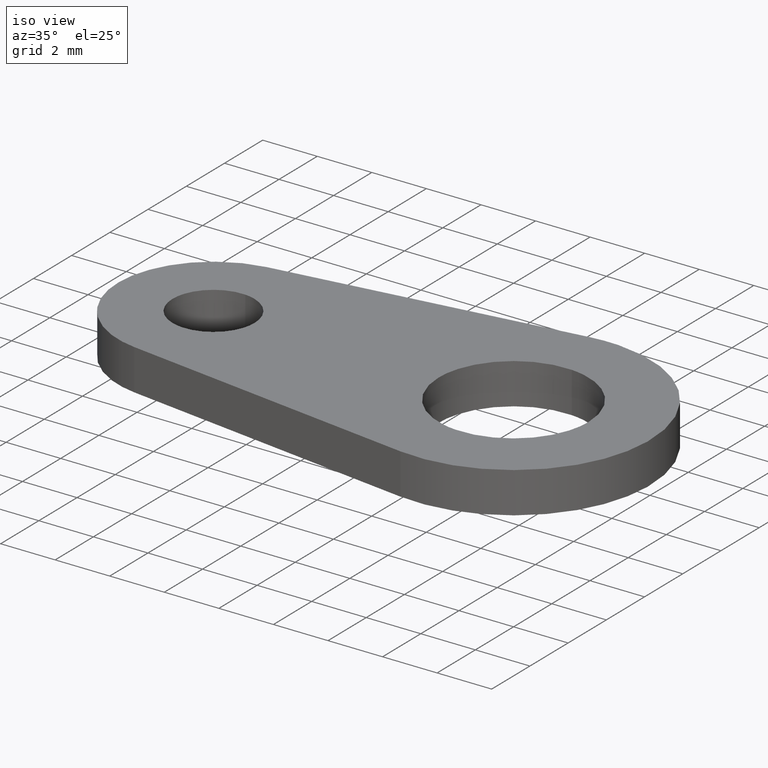
[diagram: clean part render]
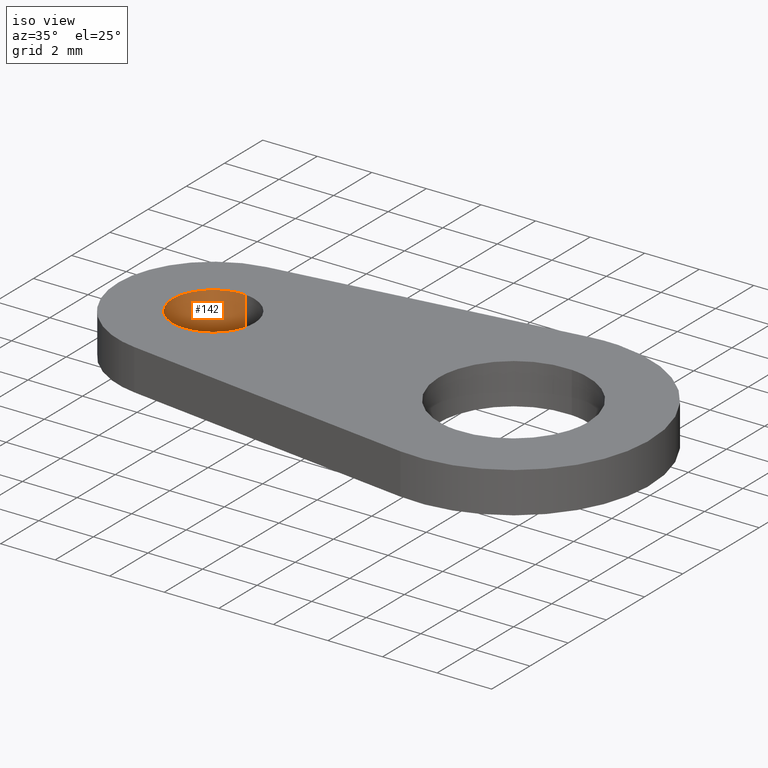
[diagram: same view with one face highlighted and labeled with its STEP entity id]
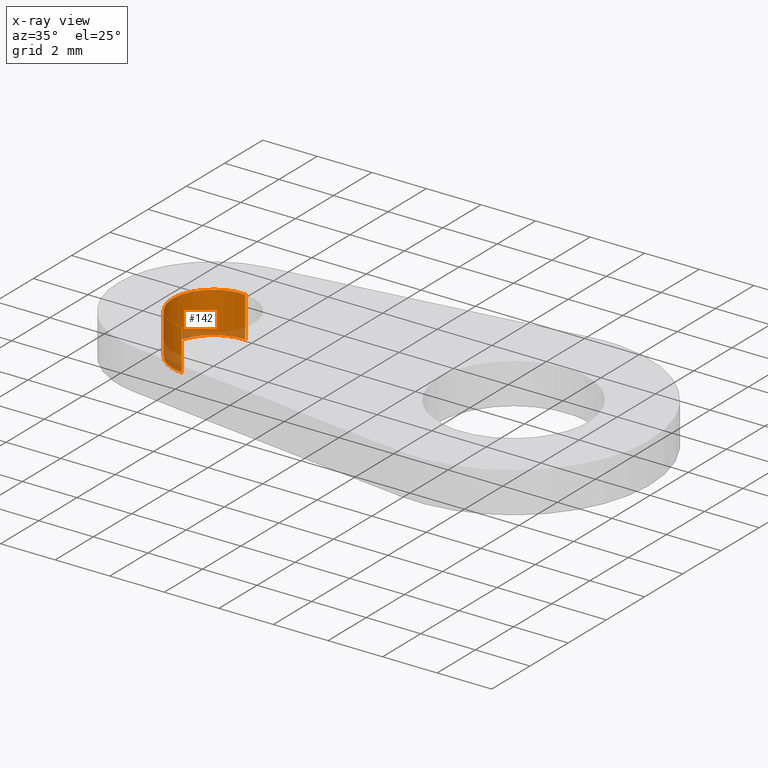
[diagram: x-ray of the same camera — body ghosted, the highlighted face saturated]
A machine part, iso view. The second image highlights one B-rep face of the part: STEP entity #142.
The next image is the same camera in x-ray: the body ghosted, the highlighted face saturated — about 17% of this face is hidden behind the body in this view.
In plain terms, the highlighted face is a freeform B-spline surface patch.
Its self-contained STEP definition (entity closure, byte-faithful):
#44=CARTESIAN_POINT('',(-0.117688643591768,-1.495376000599691,1.537500000000057));
#45=CARTESIAN_POINT('',(-1.613064644191460,-1.377687357007923,1.537500000000057));
#46=CARTESIAN_POINT('',(-1.495376000599691,0.117688643591768,1.537500000000057));
#47=CARTESIAN_POINT('',(-1.377687357007923,1.613064644191460,1.537500000000057));
#48=CARTESIAN_POINT('',(0.117688643591768,1.495376000599691,1.537500000000057));
#49=CARTESIAN_POINT('',(-0.117688643591768,-1.495376000599691,-0.038437500000001));
#50=CARTESIAN_POINT('',(-1.613064644191460,-1.377687357007923,-0.038437500000001));
#51=CARTESIAN_POINT('',(-1.495376000599691,0.117688643591768,-0.038437500000001));
#52=CARTESIAN_POINT('',(-1.377687357007923,1.613064644191460,-0.038437500000001));
#53=CARTESIAN_POINT('',(0.117688643591768,1.495376000599691,-0.038437500000001));
#61=(BOUNDED_SURFACE()B_SPLINE_SURFACE(2,1,((#44,#49),(#45,#50),(#46,#51),(#47,#52),(#48,#53)),.UNSPECIFIED.,.F.,.F.,.U.)B_SPLINE_SURFACE_WITH_KNOTS((3,2,3),(2,2),(3.141592653589793,4.712388980384690,6.283185307179586),(0.0,1.0),.UNSPECIFIED.)GEOMETRIC_REPRESENTATION_ITEM()RATIONAL_B_SPLINE_SURFACE(((1.0,1.0),(0.707106781186548,0.707106781186548),(1.0,1.0),(0.707106781186548,0.707106781186548),(1.0,1.0)))REPRESENTATION_ITEM('')SURFACE());
#62=CARTESIAN_POINT('',(-1.500000000000000,0.0,0.0));
#63=VERTEX_POINT('',#62);
#64=CARTESIAN_POINT('',(-0.117688643621651,-1.495376000597340,8.326673E-017));
#65=VERTEX_POINT('',#64);
#66=CARTESIAN_POINT('',(-1.500000000000000,0.0,0.0));
#67=CARTESIAN_POINT('',(-1.500000000000001,-1.386585737431722,0.0));
#68=CARTESIAN_POINT('',(-0.117688643621650,-1.495376000597340,8.326673E-017));
#76=(BOUNDED_CURVE()B_SPLINE_CURVE(2,(#66,#67,#68),.UNSPECIFIED.,.F.,.U.)B_SPLINE_CURVE_WITH_KNOTS((3,3),(0.0,0.236331300625916),.UNSPECIFIED.)CURVE()GEOMETRIC_REPRESENTATION_ITEM()RATIONAL_B_SPLINE_CURVE((1.0,0.723120658613224,0.969723356157517))REPRESENTATION_ITEM(''));
#77=EDGE_CURVE('',#63,#65,#76,.T.);
#78=ORIENTED_EDGE('',*,*,#77,.F.);
#79=CARTESIAN_POINT('',(0.117688643621650,1.495376000597340,8.326673E-017));
#80=VERTEX_POINT('',#79);
#81=CARTESIAN_POINT('',(0.117688643621650,1.495376000597340,8.326673E-017));
#82=CARTESIAN_POINT('',(0.058935160541526,1.500000000000000,0.0));
#83=CARTESIAN_POINT('',(0.0,1.500000000000000,0.0));
#84=CARTESIAN_POINT('',(-1.500000000000000,1.500000000000000,0.0));
#85=CARTESIAN_POINT('',(-1.500000000000000,0.0,0.0));
#93=(BOUNDED_CURVE()B_SPLINE_CURVE(2,(#81,#82,#83,#84,#85),.UNSPECIFIED.,.F.,.U.)B_SPLINE_CURVE_WITH_KNOTS((3,2,3),(0.736331300625916,0.750000000000000,1.0),.UNSPECIFIED.)CURVE()GEOMETRIC_REPRESENTATION_ITEM()RATIONAL_B_SPLINE_CURVE((0.969723356157518,0.983986122573324,1.0,0.707106781186548,1.0))REPRESENTATION_ITEM(''));
#94=EDGE_CURVE('',#80,#63,#93,.T.);
#95=ORIENTED_EDGE('',*,*,#94,.F.);
#96=CARTESIAN_POINT('',(0.117688643621650,1.495376000597340,1.500000000000055));
#97=VERTEX_POINT('',#96);
#98=CARTESIAN_POINT('',(0.117688643621650,1.495376000597340,1.500000000000055));
#99=CARTESIAN_POINT('',(0.117688643621650,1.495376000597340,8.326673E-017));
#100=QUASI_UNIFORM_CURVE('',1,(#98,#99),.UNSPECIFIED.,.F.,.U.);
#101=EDGE_CURVE('',#97,#80,#100,.T.);
#102=ORIENTED_EDGE('',*,*,#101,.F.);
#103=CARTESIAN_POINT('',(-1.500000000000000,0.0,1.500000000000055));
#104=VERTEX_POINT('',#103);
#105=CARTESIAN_POINT('',(0.117688643621650,1.495376000597340,1.500000000000055));
#106=CARTESIAN_POINT('',(0.058935160541526,1.500000000000000,1.500000000000055));
#107=CARTESIAN_POINT('',(0.0,1.500000000000000,1.500000000000055));
#108=CARTESIAN_POINT('',(-1.500000000000000,1.500000000000000,1.500000000000055));
#109=CARTESIAN_POINT('',(-1.500000000000000,0.0,1.500000000000055));
#117=(BOUNDED_CURVE()B_SPLINE_CURVE(2,(#105,#106,#107,#108,#109),.UNSPECIFIED.,.F.,.U.)B_SPLINE_CURVE_WITH_KNOTS((3,2,3),(0.736331300625916,0.750000000000000,1.0),.UNSPECIFIED.)CURVE()GEOMETRIC_REPRESENTATION_ITEM()RATIONAL_B_SPLINE_CURVE((0.969723356157518,0.983986122573324,1.0,0.707106781186548,1.0))REPRESENTATION_ITEM(''));
#118=EDGE_CURVE('',#97,#104,#117,.T.);
#119=ORIENTED_EDGE('',*,*,#118,.T.);
#120=CARTESIAN_POINT('',(-0.117688643621651,-1.495376000597340,1.500000000000055));
#121=VERTEX_POINT('',#120);
#122=CARTESIAN_POINT('',(-1.500000000000000,0.0,1.500000000000055));
#123=CARTESIAN_POINT('',(-1.500000000000001,-1.386585737431722,1.500000000000055));
#124=CARTESIAN_POINT('',(-0.117688643621650,-1.495376000597340,1.500000000000054));
#132=(BOUNDED_CURVE()B_SPLINE_CURVE(2,(#122,#123,#124),.UNSPECIFIED.,.F.,.U.)B_SPLINE_CURVE_WITH_KNOTS((3,3),(0.0,0.236331300625916),.UNSPECIFIED.)CURVE()GEOMETRIC_REPRESENTATION_ITEM()RATIONAL_B_SPLINE_CURVE((1.0,0.723120658613224,0.969723356157517))REPRESENTATION_ITEM(''));
#133=EDGE_CURVE('',#104,#121,#132,.T.);
#134=ORIENTED_EDGE('',*,*,#133,.T.);
#135=CARTESIAN_POINT('',(-0.117688643621651,-1.495376000597340,1.500000000000055));
#136=CARTESIAN_POINT('',(-0.117688643621651,-1.495376000597340,8.326673E-017));
#137=QUASI_UNIFORM_CURVE('',1,(#135,#136),.UNSPECIFIED.,.F.,.U.);
#138=EDGE_CURVE('',#121,#65,#137,.T.);
#139=ORIENTED_EDGE('',*,*,#138,.T.);
#140=EDGE_LOOP('',(#78,#95,#102,#119,#134,#139));
#141=FACE_OUTER_BOUND('',#140,.T.);
#142=ADVANCED_FACE('',(#141),#61,.F.);